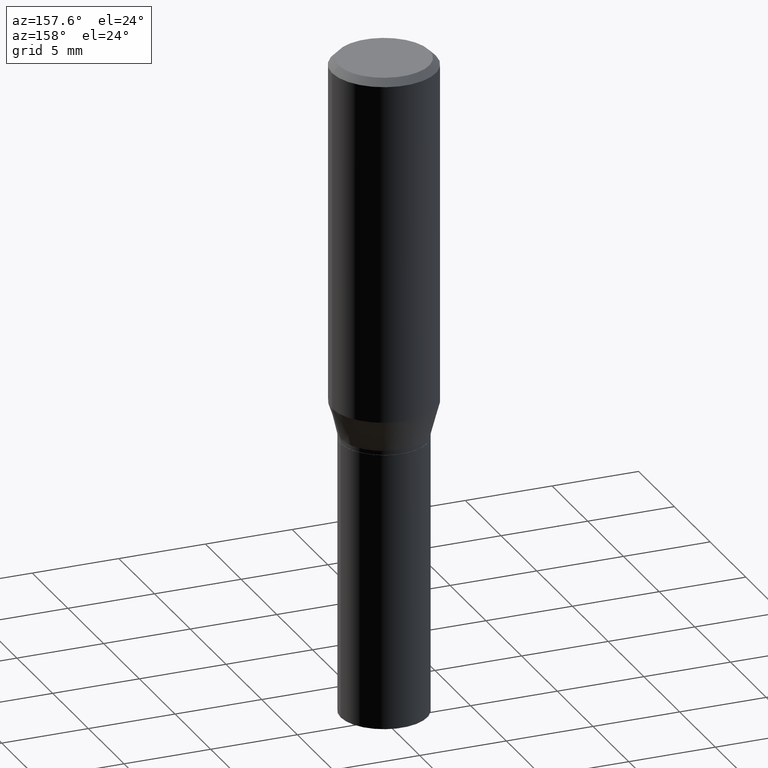
[diagram: clean part render]
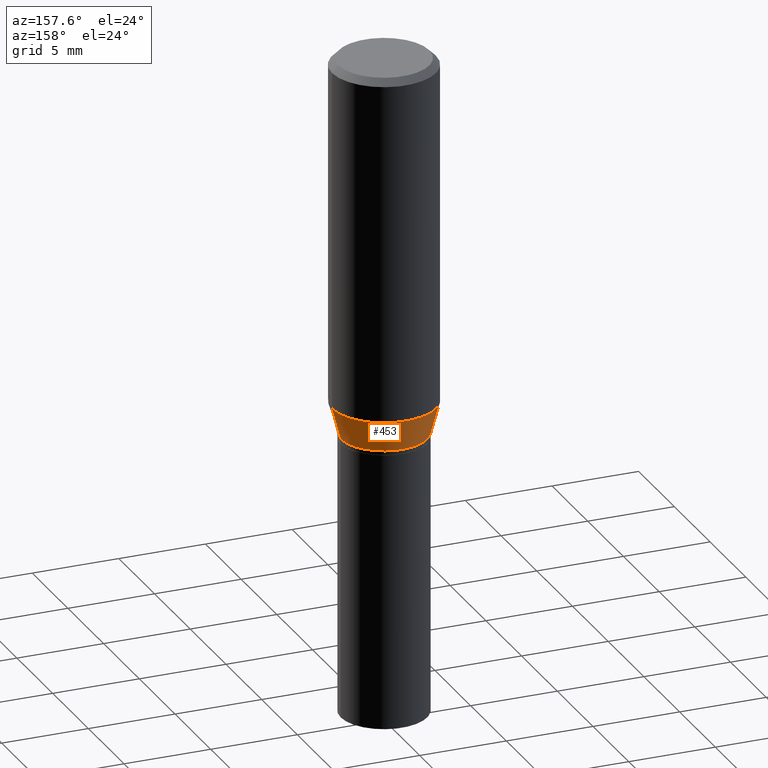
[diagram: same view with one face highlighted and labeled with its STEP entity id]
A machine part, auxiliary view. The second image highlights one B-rep face of the part: STEP entity #453.
In plain terms, the highlighted conical surface has half-angle 15 deg.
Its self-contained STEP definition (entity closure, byte-faithful):
#3 = DIRECTION ( 'NONE',  ( -0.2588190451025215166, 5.211531920934551042E-15, 0.9659258262890679791 ) ) ;
#9 = VECTOR ( 'NONE', #3, 39.37007874015748143 ) ;
#21 = ORIENTED_EDGE ( 'NONE', *, *, #455, .T. ) ;
#39 = CARTESIAN_POINT ( 'NONE',  ( 2.103347720199836269E-29, -3.003023099538989951E-15, -0.8601000000000000867 ) ) ;
#42 = FACE_OUTER_BOUND ( 'NONE', #366, .T. ) ;
#51 = CARTESIAN_POINT ( 'NONE',  ( 0.09845000000000017626, -3.690495775157203695E-15, -0.8601000000000000867 ) ) ;
#70 = VERTEX_POINT ( 'NONE', #51 ) ;
#72 = DIRECTION ( 'NONE',  ( -2.445468806185136597E-29, 3.491481338843145583E-15, 1.000000000000000000 ) ) ;
#88 = VERTEX_POINT ( 'NONE', #303 ) ;
#102 = DIRECTION ( 'NONE',  ( -2.445468806185136597E-29, 3.491481338843145583E-15, 1.000000000000000000 ) ) ;
#104 = CARTESIAN_POINT ( 'NONE',  ( -0.09845000000000017626, -2.303493776183169474E-15, -0.8601000000000000867 ) ) ;
#109 = LINE ( 'NONE', #142, #294 ) ;
#112 = AXIS2_PLACEMENT_3D ( 'NONE', #39, #72, #184 ) ;
#138 = DIRECTION ( 'NONE',  ( -2.445468806185136597E-29, 3.491481338843145583E-15, 1.000000000000000000 ) ) ;
#142 = CARTESIAN_POINT ( 'NONE',  ( 0.09845000000000017626, -3.690495775157203695E-15, -0.8601000000000000867 ) ) ;
#146 = DIRECTION ( 'NONE',  ( 0.2588190451025215166, 1.565188264969620784E-15, 0.9659258262890679791 ) ) ;
#184 = DIRECTION ( 'NONE',  ( 1.000000000000000000, -6.982962677686267499E-15, 0.000000000000000000 ) ) ;
#207 = EDGE_CURVE ( 'NONE', #220, #88, #377, .T. ) ;
#209 = ORIENTED_EDGE ( 'NONE', *, *, #306, .F. ) ;
#220 = VERTEX_POINT ( 'NONE', #273 ) ;
#229 = CONICAL_SURFACE ( 'NONE', #112, 0.09845000000000017626, 0.2617993877991502405 ) ;
#235 = DIRECTION ( 'NONE',  ( 1.000000000000000000, -6.982962677686269077E-15, 0.000000000000000000 ) ) ;
#236 = AXIS2_PLACEMENT_3D ( 'NONE', #433, #102, #241 ) ;
#241 = DIRECTION ( 'NONE',  ( 1.000000000000000000, -6.982962677686267499E-15, 0.000000000000000000 ) ) ;
#273 = CARTESIAN_POINT ( 'NONE',  ( 0.1180999999999999966, -3.571663911781501372E-15, -0.7867652016312725038 ) ) ;
#282 = CARTESIAN_POINT ( 'NONE',  ( -0.09845000000000017626, -2.105659412398621996E-15, -0.8601000000000000867 ) ) ;
#285 = CIRCLE ( 'NONE', #236, 0.09845000000000017626 ) ;
#294 = VECTOR ( 'NONE', #146, 39.37007874015748143 ) ;
#303 = CARTESIAN_POINT ( 'NONE',  ( -0.1180999999999999966, -1.907825048614074518E-15, -0.7867652016312725038 ) ) ;
#306 = EDGE_CURVE ( 'NONE', #70, #220, #109, .T. ) ;
#330 = ORIENTED_EDGE ( 'NONE', *, *, #207, .F. ) ;
#366 = EDGE_LOOP ( 'NONE', ( #21, #397, #330, #209 ) ) ;
#377 = CIRCLE ( 'NONE', #384, 0.1180999999999999966 ) ;
#380 = VERTEX_POINT ( 'NONE', #282 ) ;
#383 = CARTESIAN_POINT ( 'NONE',  ( 1.924009758381236534E-29, -2.746976019546752715E-15, -0.7867652016312725038 ) ) ;
#384 = AXIS2_PLACEMENT_3D ( 'NONE', #383, #138, #235 ) ;
#393 = LINE ( 'NONE', #104, #9 ) ;
#397 = ORIENTED_EDGE ( 'NONE', *, *, #438, .T. ) ;
#433 = CARTESIAN_POINT ( 'NONE',  ( 2.103347720199836269E-29, -3.003023099538989951E-15, -0.8601000000000000867 ) ) ;
#438 = EDGE_CURVE ( 'NONE', #380, #88, #393, .T. ) ;
#453 = ADVANCED_FACE ( 'NONE', ( #42 ), #229, .T. ) ;
#455 = EDGE_CURVE ( 'NONE', #70, #380, #285, .T. ) ;